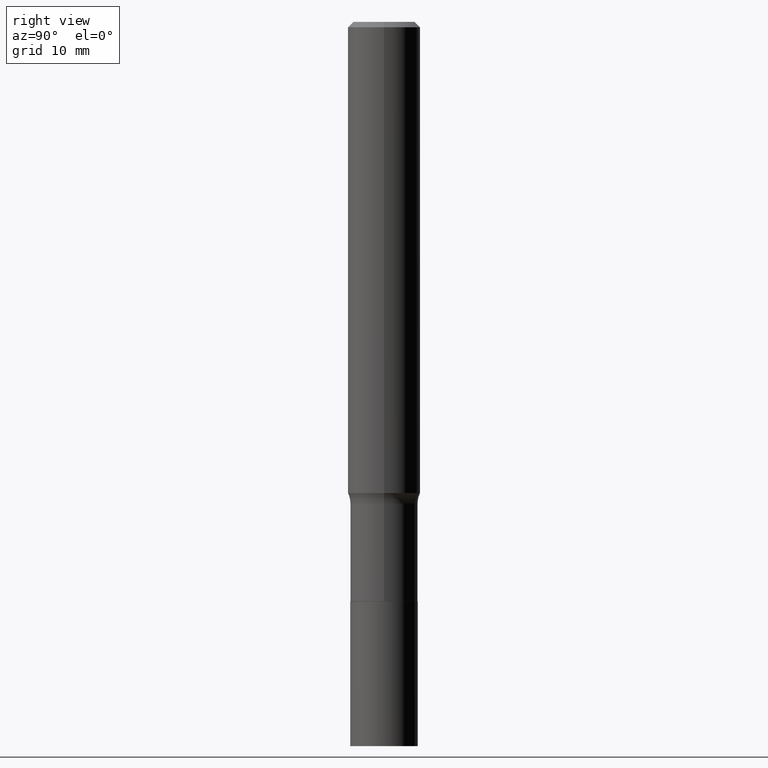
[diagram: clean part render]
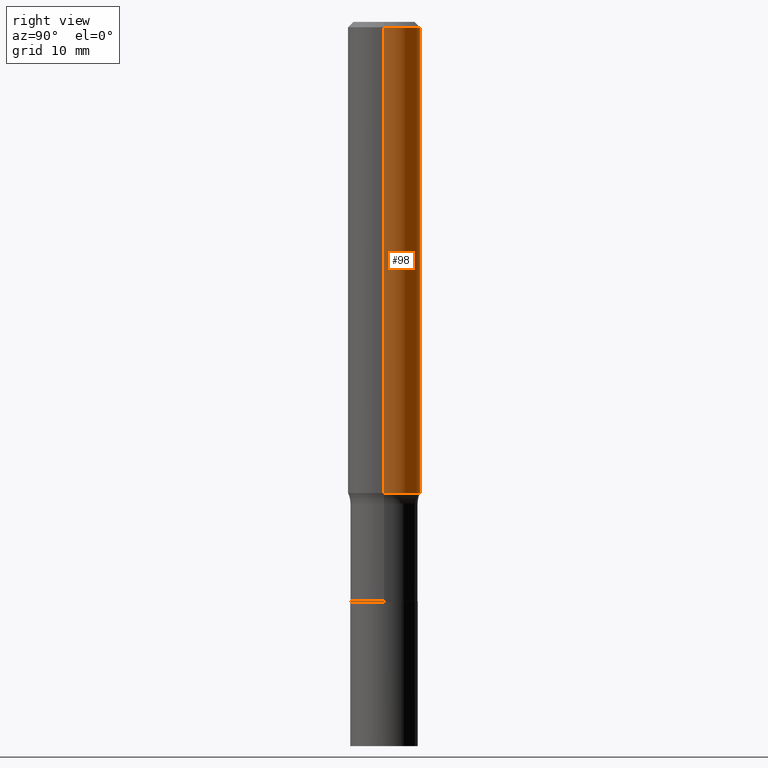
[diagram: same view with one face highlighted and labeled with its STEP entity id]
A machine part, right view. The second image highlights one B-rep face of the part: STEP entity #98.
In plain terms, the highlighted cylindrical surface (edge-blend (fillet) strip) has radius 2.9997 mm, axis along (-0, 0, 1).
Its self-contained STEP definition (entity closure, byte-faithful):
#12 = EDGE_CURVE ( 'NONE', #399, #71, #354, .T. ) ;
#23 = AXIS2_PLACEMENT_3D ( 'NONE', #51, #160, #416 ) ;
#38 = CARTESIAN_POINT ( 'NONE',  ( 3.757561209076375326E-29, -5.364801549653391521E-15, -1.536540232929025418 ) ) ;
#39 = CARTESIAN_POINT ( 'NONE',  ( -0.1181000000000001909, -4.525650578720712535E-15, -1.536540232929025418 ) ) ;
#43 = CYLINDRICAL_SURFACE ( 'NONE', #218, 0.1181000000000001077 ) ;
#51 = CARTESIAN_POINT ( 'NONE',  ( 4.332147990156997620E-31, -6.185159191760672860E-17, -0.01771500000000011607 ) ) ;
#60 = CARTESIAN_POINT ( 'NONE',  ( 0.1181000000000001909, -6.189489441888142939E-15, -1.536540232929025418 ) ) ;
#71 = VERTEX_POINT ( 'NONE', #321 ) ;
#85 = CARTESIAN_POINT ( 'NONE',  ( 0.000000000000000000, 0.000000000000000000, 0.000000000000000000 ) ) ;
#91 = LINE ( 'NONE', #451, #248 ) ;
#98 = ADVANCED_FACE ( 'NONE', ( #406 ), #43, .T. ) ;
#99 = ORIENTED_EDGE ( 'NONE', *, *, #257, .T. ) ;
#105 = AXIS2_PLACEMENT_3D ( 'NONE', #38, #226, #297 ) ;
#111 = VECTOR ( 'NONE', #429, 39.37007874015748143 ) ;
#113 = DIRECTION ( 'NONE',  ( 1.000000000000000000, -6.982962677686266711E-15, 4.876176775795935793E-29 ) ) ;
#130 = ORIENTED_EDGE ( 'NONE', *, *, #266, .T. ) ;
#139 = EDGE_LOOP ( 'NONE', ( #99, #130, #194, #249 ) ) ;
#160 = DIRECTION ( 'NONE',  ( -2.445468806185136597E-29, 3.491481338843145583E-15, 1.000000000000000000 ) ) ;
#194 = ORIENTED_EDGE ( 'NONE', *, *, #315, .F. ) ;
#218 = AXIS2_PLACEMENT_3D ( 'NONE', #85, #330, #113 ) ;
#226 = DIRECTION ( 'NONE',  ( -2.445468806185136597E-29, 3.491481338843145583E-15, 1.000000000000000000 ) ) ;
#248 = VECTOR ( 'NONE', #378, 39.37007874015748143 ) ;
#249 = ORIENTED_EDGE ( 'NONE', *, *, #12, .F. ) ;
#252 = CARTESIAN_POINT ( 'NONE',  ( 0.1181000000000001077, -8.246878922347488542E-16, 5.758764772215005345E-30 ) ) ;
#257 = EDGE_CURVE ( 'NONE', #399, #461, #270, .T. ) ;
#266 = EDGE_CURVE ( 'NONE', #461, #442, #91, .T. ) ;
#270 = CIRCLE ( 'NONE', #105, 0.1181000000000001909 ) ;
#297 = DIRECTION ( 'NONE',  ( 1.000000000000000000, -6.982962677686269077E-15, 0.000000000000000000 ) ) ;
#315 = EDGE_CURVE ( 'NONE', #71, #442, #434, .T. ) ;
#321 = CARTESIAN_POINT ( 'NONE',  ( 0.1180999999999999966, -8.865394841523547570E-16, -0.01771500000000011607 ) ) ;
#330 = DIRECTION ( 'NONE',  ( -2.445468806185136597E-29, 3.491481338843145583E-15, 1.000000000000000000 ) ) ;
#354 = LINE ( 'NONE', #252, #111 ) ;
#378 = DIRECTION ( 'NONE',  ( -2.445468806185136877E-29, 3.491481338843145188E-15, 1.000000000000000000 ) ) ;
#399 = VERTEX_POINT ( 'NONE', #60 ) ;
#406 = FACE_OUTER_BOUND ( 'NONE', #139, .T. ) ;
#416 = DIRECTION ( 'NONE',  ( 1.000000000000000000, -6.982962677686266711E-15, 0.000000000000000000 ) ) ;
#429 = DIRECTION ( 'NONE',  ( -2.445468806185136877E-29, 3.491481338843145188E-15, 1.000000000000000000 ) ) ;
#434 = CIRCLE ( 'NONE', #23, 0.1180999999999999966 ) ;
#442 = VERTEX_POINT ( 'NONE', #443 ) ;
#443 = CARTESIAN_POINT ( 'NONE',  ( -0.1180999999999999966, -1.874175599852819479E-15, -0.01771500000000011607 ) ) ;
#451 = CARTESIAN_POINT ( 'NONE',  ( -0.1181000000000001077, 8.391509709326790846E-16, -5.809262341591049389E-30 ) ) ;
#461 = VERTEX_POINT ( 'NONE', #39 ) ;